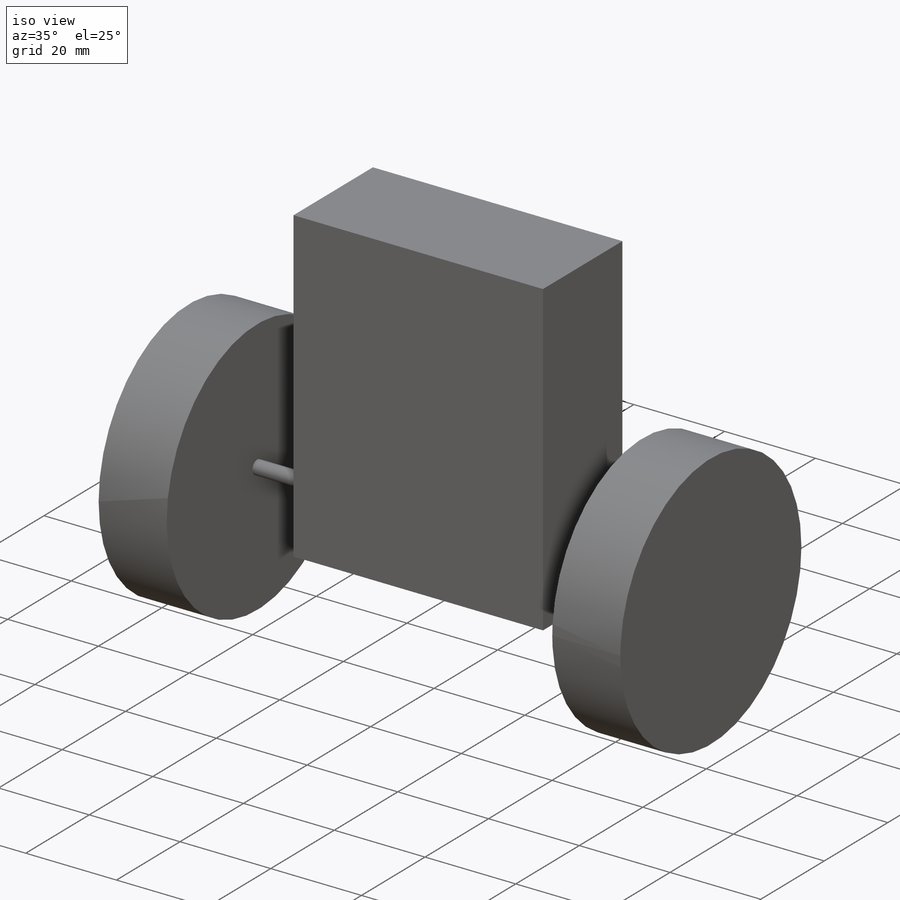
[diagram: iso view]
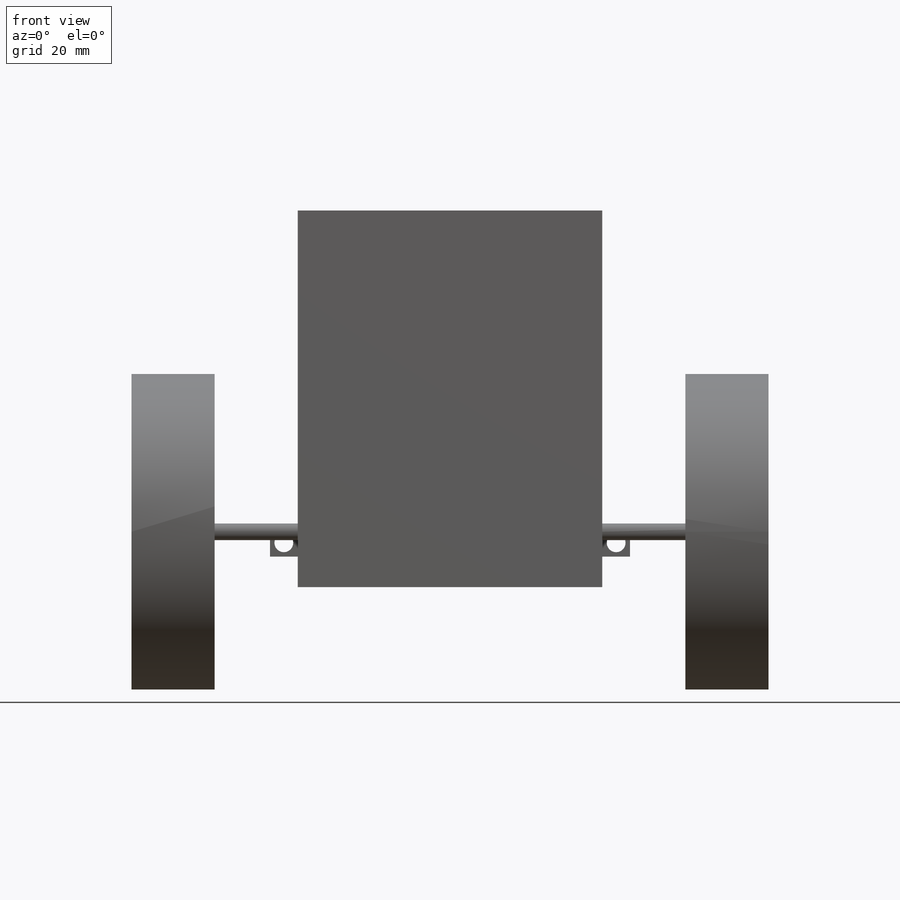
[diagram: front view]
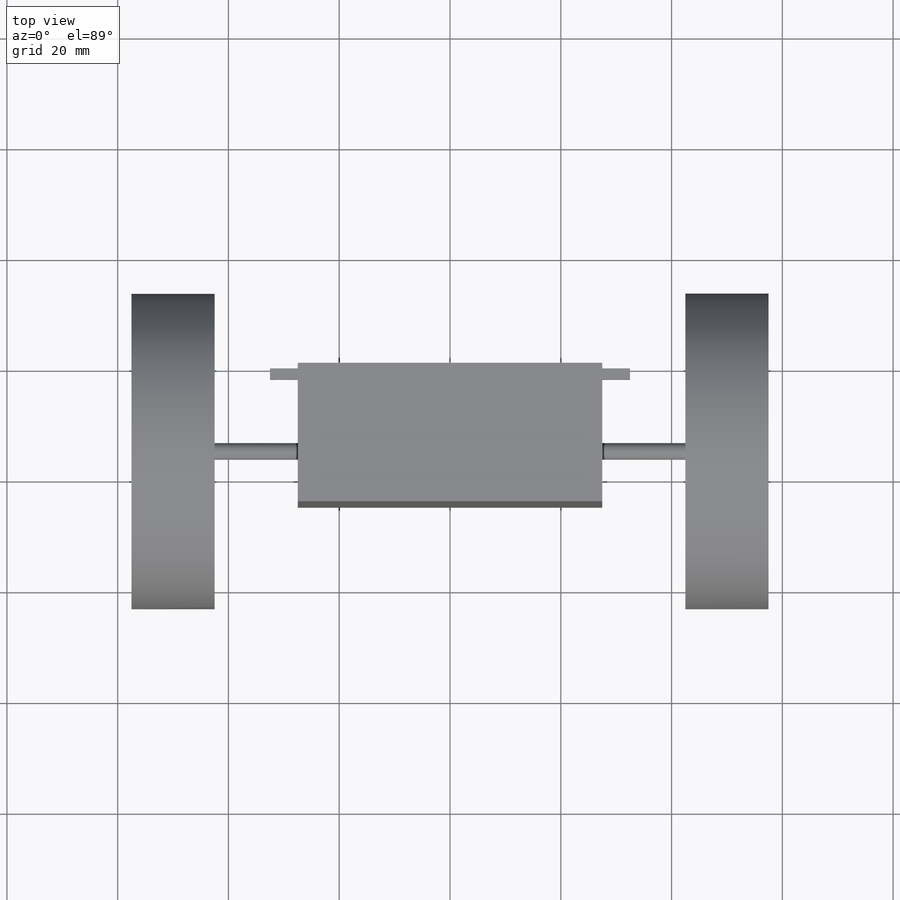
[diagram: top view]
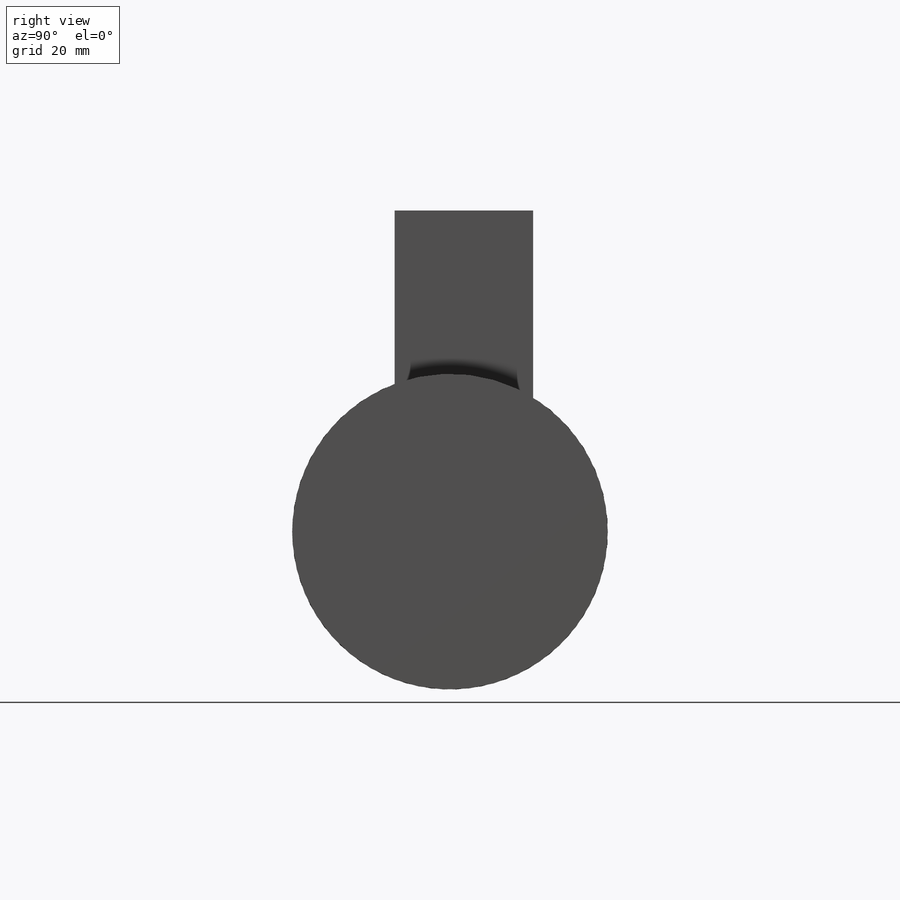
[diagram: right view]
SOLIDWORKS PART (.sldprt)
format: sldprt  version: not decoded by parser v0  size: 210,944 bytes
history: native  units: mm
features: sketch x7, extrude x4, plane x3, mirror x3, material x1, hole x1 (+9 scaffold rows collapsed)
feature tree (28):
  scaffold x9  (default folders/planes/origin — collapsed)
  material  "Material <not specified>"
  plane  "Plan de face"
  plane  "Plan de dessus"
  plane  "Plan de droite"
  sketch  "Esquisse1"  dims[D1=55.0mm D2=68.0mm]
  extrude  "Boss.-Extru.1"  Depth=25mm
  sketch  "Esquisse3"  dims[D3=3.0mm D1=10.0mm D2=10.0mm]
  extrude  "Boss.-Extru.2"  Depth=20mm
  mirror  "Symétrie1"
  sketch  "Esquisse4"  dims[D1=57.0mm]
  extrude  "Boss.-Extru.3"  Depth=10mm
  mirror  "Symétrie2"
  sketch  "Esquisse5"  dims[D1=5.0mm D2=5.0mm]
  extrude  "Boss.-Extru.4"  Depth=2mm
  sketch  "Esquisse8"
  hole  "Dégagement M31"  Diameter=3.4mm Depth=3mm
  sketch  "Esquisse10"
  sketch  "Esquisse9"  dims[hole-wizard template sketch: 47 standard entries collapsed; hole parameters kept: c15.Profondeur du perçage=3.0mm c15.D3=~14.816244mm c15.Angle de pointe=118.0deg]
  mirror  "Symétrie3"
decode coverage: 10 of 15 modeling features carry decoded parameters
note: ~ marks probable driven/reference dimensions
note: suppression state not decoded; provenance and decode notes live in map.json
